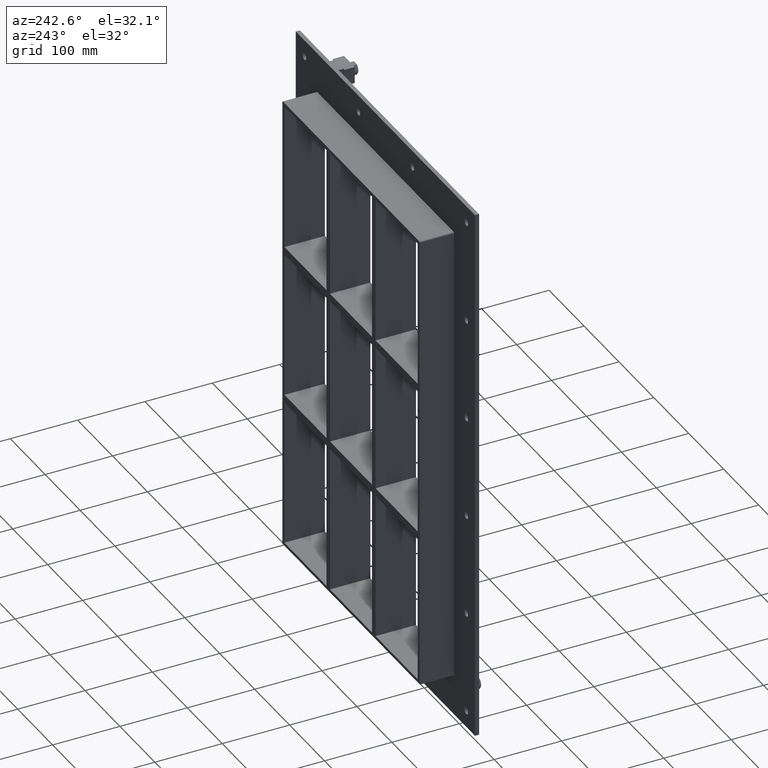
[diagram: clean part render]
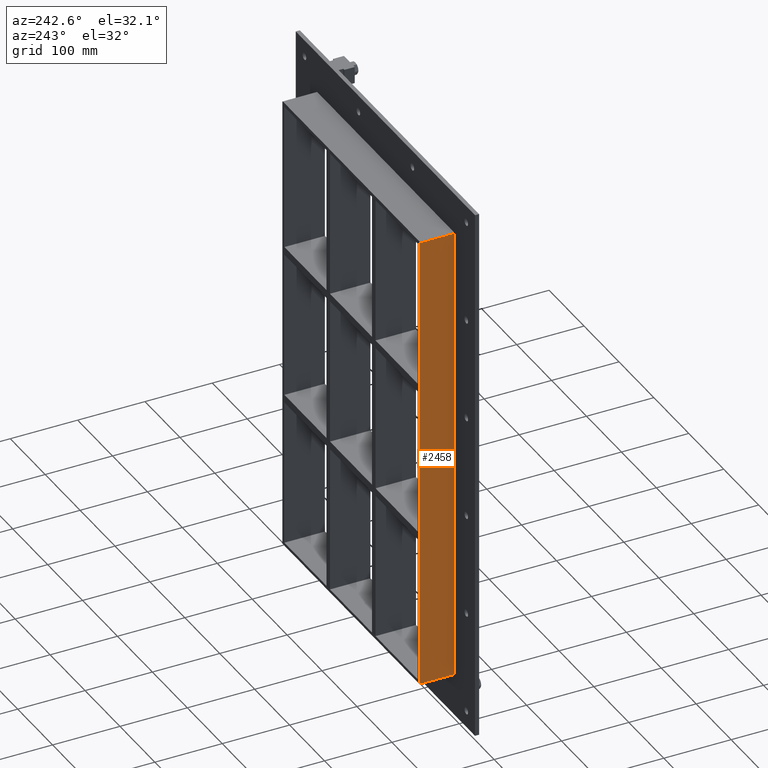
[diagram: same view with one face highlighted and labeled with its STEP entity id]
A machine part, auxiliary view. The second image highlights one B-rep face of the part: STEP entity #2458.
In plain terms, the highlighted planar face has unit normal (-1, 0, 0).
Its self-contained STEP definition (entity closure, byte-faithful):
#1009=CARTESIAN_POINT('',(-196.75000000000006,57.0,-343.00000000000006));
#1010=VERTEX_POINT('',#1009);
#1019=CARTESIAN_POINT('',(-196.75000000000006,57.0,343.00000000000006));
#1020=VERTEX_POINT('',#1019);
#1021=CARTESIAN_POINT('',(-196.75000000000006,57.0,-343.0));
#1022=DIRECTION('',(0.0,0.0,1.0));
#1023=VECTOR('',#1022,686.0);
#1024=LINE('',#1021,#1023);
#1025=EDGE_CURVE('',#1010,#1020,#1024,.T.);
#1949=CARTESIAN_POINT('',(-196.75000000000006,6.000000000000001,343.00000000000006));
#1950=VERTEX_POINT('',#1949);
#1960=CARTESIAN_POINT('',(-196.75000000000006,6.000000000000001,-343.00000000000006));
#1961=VERTEX_POINT('',#1960);
#1962=CARTESIAN_POINT('',(-196.75000000000006,6.000000000000001,-343.0));
#1963=DIRECTION('',(0.0,0.0,1.0));
#1964=VECTOR('',#1963,686.00000000000011);
#1965=LINE('',#1962,#1964);
#1966=EDGE_CURVE('',#1961,#1950,#1965,.T.);
#2391=CARTESIAN_POINT('',(-196.75000000000006,6.000000000000001,-343.00000000000006));
#2392=DIRECTION('',(0.0,1.0,0.0));
#2393=VECTOR('',#2392,51.0);
#2394=LINE('',#2391,#2393);
#2395=EDGE_CURVE('',#1961,#1010,#2394,.T.);
#2442=CARTESIAN_POINT('',(-196.75000000000006,0.0,-345.00000000000006));
#2443=DIRECTION('',(-1.0,0.0,0.0));
#2444=DIRECTION('',(0.0,0.0,1.0));
#2445=AXIS2_PLACEMENT_3D('',#2442,#2443,#2444);
#2446=PLANE('',#2445);
#2447=ORIENTED_EDGE('',*,*,#1966,.T.);
#2448=CARTESIAN_POINT('',(-196.75000000000006,57.0,343.00000000000006));
#2449=DIRECTION('',(0.0,-1.0,0.0));
#2450=VECTOR('',#2449,51.0);
#2451=LINE('',#2448,#2450);
#2452=EDGE_CURVE('',#1020,#1950,#2451,.T.);
#2453=ORIENTED_EDGE('',*,*,#2452,.F.);
#2454=ORIENTED_EDGE('',*,*,#1025,.F.);
#2455=ORIENTED_EDGE('',*,*,#2395,.F.);
#2456=EDGE_LOOP('',(#2447,#2453,#2454,#2455));
#2457=FACE_OUTER_BOUND('',#2456,.T.);
#2458=ADVANCED_FACE('',(#2457),#2446,.T.);